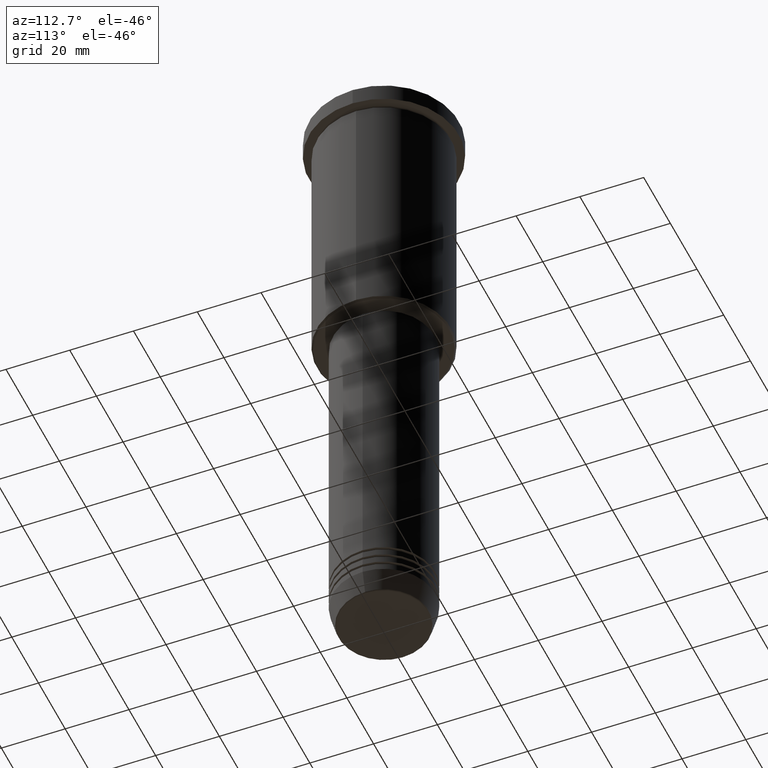
[diagram: clean part render]
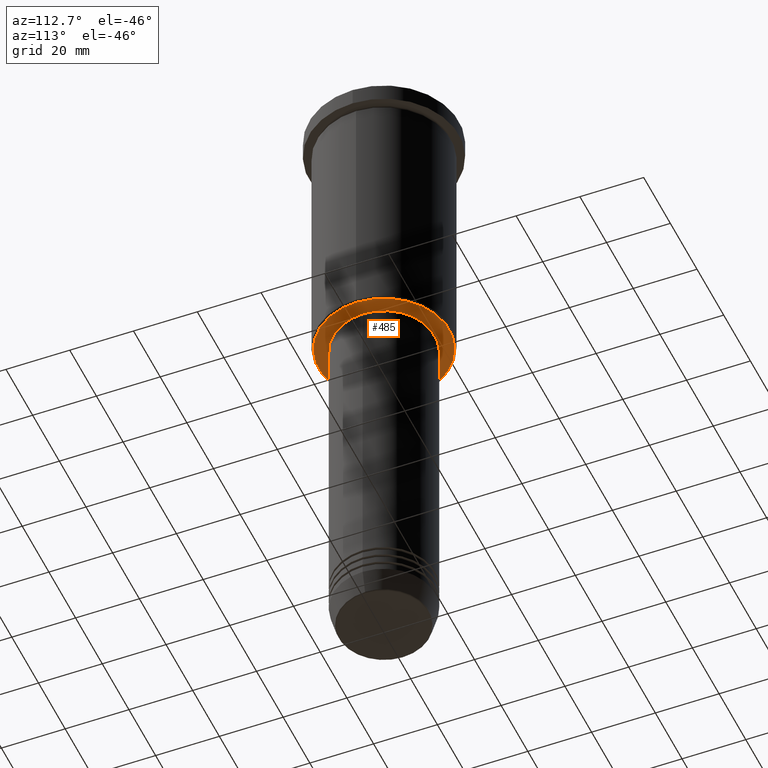
[diagram: same view with one face highlighted and labeled with its STEP entity id]
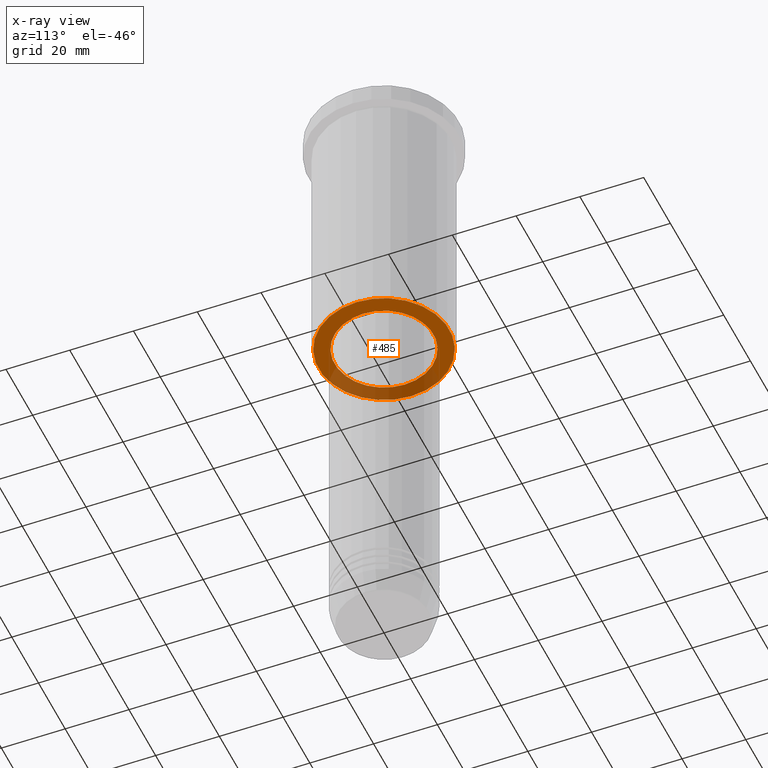
[diagram: x-ray of the same camera — body ghosted, the highlighted face saturated]
A machine part, auxiliary view. The second image highlights one B-rep face of the part: STEP entity #485.
The next image is the same camera in x-ray: the body ghosted, the highlighted face saturated — about 31% of this face is hidden behind the body in this view.
In plain terms, the highlighted planar face has unit normal (0, 0, -1).
Its self-contained STEP definition (entity closure, byte-faithful):
#1 = CARTESIAN_POINT ( 'NONE',  ( -15.50000000000000000, 1.898202538678397557E-15, -86.00000000000000000 ) ) ;
#2 = DIRECTION ( 'NONE',  ( -0.000000000000000000, -0.000000000000000000, 1.000000000000000000 ) ) ;
#33 = ORIENTED_EDGE ( 'NONE', *, *, #933, .T. ) ;
#67 = DIRECTION ( 'NONE',  ( 1.000000000000000000, 0.000000000000000000, 0.000000000000000000 ) ) ;
#121 = DIRECTION ( 'NONE',  ( 0.000000000000000000, 0.000000000000000000, -1.000000000000000000 ) ) ;
#124 = AXIS2_PLACEMENT_3D ( 'NONE', #335, #1172, #158 ) ;
#158 = DIRECTION ( 'NONE',  ( -1.000000000000000000, 0.000000000000000000, 0.000000000000000000 ) ) ;
#178 = AXIS2_PLACEMENT_3D ( 'NONE', #615, #969, #67 ) ;
#198 = CIRCLE ( 'NONE', #769, 20.49999999999996447 ) ;
#204 = FACE_OUTER_BOUND ( 'NONE', #450, .T. ) ;
#219 = CARTESIAN_POINT ( 'NONE',  ( 0.000000000000000000, 0.000000000000000000, -86.00000000000000000 ) ) ;
#227 = EDGE_CURVE ( 'NONE', #816, #1101, #842, .T. ) ;
#277 = EDGE_LOOP ( 'NONE', ( #1003, #746 ) ) ;
#335 = CARTESIAN_POINT ( 'NONE',  ( 0.000000000000000000, 0.000000000000000000, -86.00000000000000000 ) ) ;
#372 = PLANE ( 'NONE',  #828 ) ;
#391 = CARTESIAN_POINT ( 'NONE',  ( 0.000000000000000000, 21.00000000000000000, -86.00000000000000000 ) ) ;
#412 = DIRECTION ( 'NONE',  ( -1.000000000000000000, 0.000000000000000000, 0.000000000000000000 ) ) ;
#450 = EDGE_LOOP ( 'NONE', ( #33, #824 ) ) ;
#484 = CIRCLE ( 'NONE', #124, 20.49999999999996447 ) ;
#485 = ADVANCED_FACE ( 'NONE', ( #204, #930 ), #372, .T. ) ;
#615 = CARTESIAN_POINT ( 'NONE',  ( 0.000000000000000000, 0.000000000000000000, -86.00000000000000000 ) ) ;
#746 = ORIENTED_EDGE ( 'NONE', *, *, #227, .T. ) ;
#769 = AXIS2_PLACEMENT_3D ( 'NONE', #219, #121, #412 ) ;
#807 = CARTESIAN_POINT ( 'NONE',  ( 0.000000000000000000, 0.000000000000000000, -86.00000000000000000 ) ) ;
#816 = VERTEX_POINT ( 'NONE', #1 ) ;
#824 = ORIENTED_EDGE ( 'NONE', *, *, #1066, .T. ) ;
#828 = AXIS2_PLACEMENT_3D ( 'NONE', #391, #1118, #1125 ) ;
#832 = VERTEX_POINT ( 'NONE', #1032 ) ;
#834 = CARTESIAN_POINT ( 'NONE',  ( 15.50000000000000000, 0.000000000000000000, -86.00000000000000000 ) ) ;
#842 = CIRCLE ( 'NONE', #1167, 15.50000000000000000 ) ;
#913 = DIRECTION ( 'NONE',  ( 1.000000000000000000, 0.000000000000000000, 0.000000000000000000 ) ) ;
#923 = CIRCLE ( 'NONE', #178, 15.50000000000000000 ) ;
#930 = FACE_BOUND ( 'NONE', #277, .T. ) ;
#933 = EDGE_CURVE ( 'NONE', #983, #832, #198, .T. ) ;
#969 = DIRECTION ( 'NONE',  ( -0.000000000000000000, -0.000000000000000000, 1.000000000000000000 ) ) ;
#971 = EDGE_CURVE ( 'NONE', #1101, #816, #923, .T. ) ;
#983 = VERTEX_POINT ( 'NONE', #1080 ) ;
#1003 = ORIENTED_EDGE ( 'NONE', *, *, #971, .T. ) ;
#1032 = CARTESIAN_POINT ( 'NONE',  ( -20.49999999999996447, 2.541142108230755902E-15, -86.00000000000000000 ) ) ;
#1066 = EDGE_CURVE ( 'NONE', #832, #983, #484, .T. ) ;
#1080 = CARTESIAN_POINT ( 'NONE',  ( 20.49999999999996447, 0.000000000000000000, -86.00000000000000000 ) ) ;
#1101 = VERTEX_POINT ( 'NONE', #834 ) ;
#1118 = DIRECTION ( 'NONE',  ( 0.000000000000000000, 0.000000000000000000, -1.000000000000000000 ) ) ;
#1125 = DIRECTION ( 'NONE',  ( -1.000000000000000000, 0.000000000000000000, -0.000000000000000000 ) ) ;
#1167 = AXIS2_PLACEMENT_3D ( 'NONE', #807, #2, #913 ) ;
#1172 = DIRECTION ( 'NONE',  ( 0.000000000000000000, 0.000000000000000000, -1.000000000000000000 ) ) ;